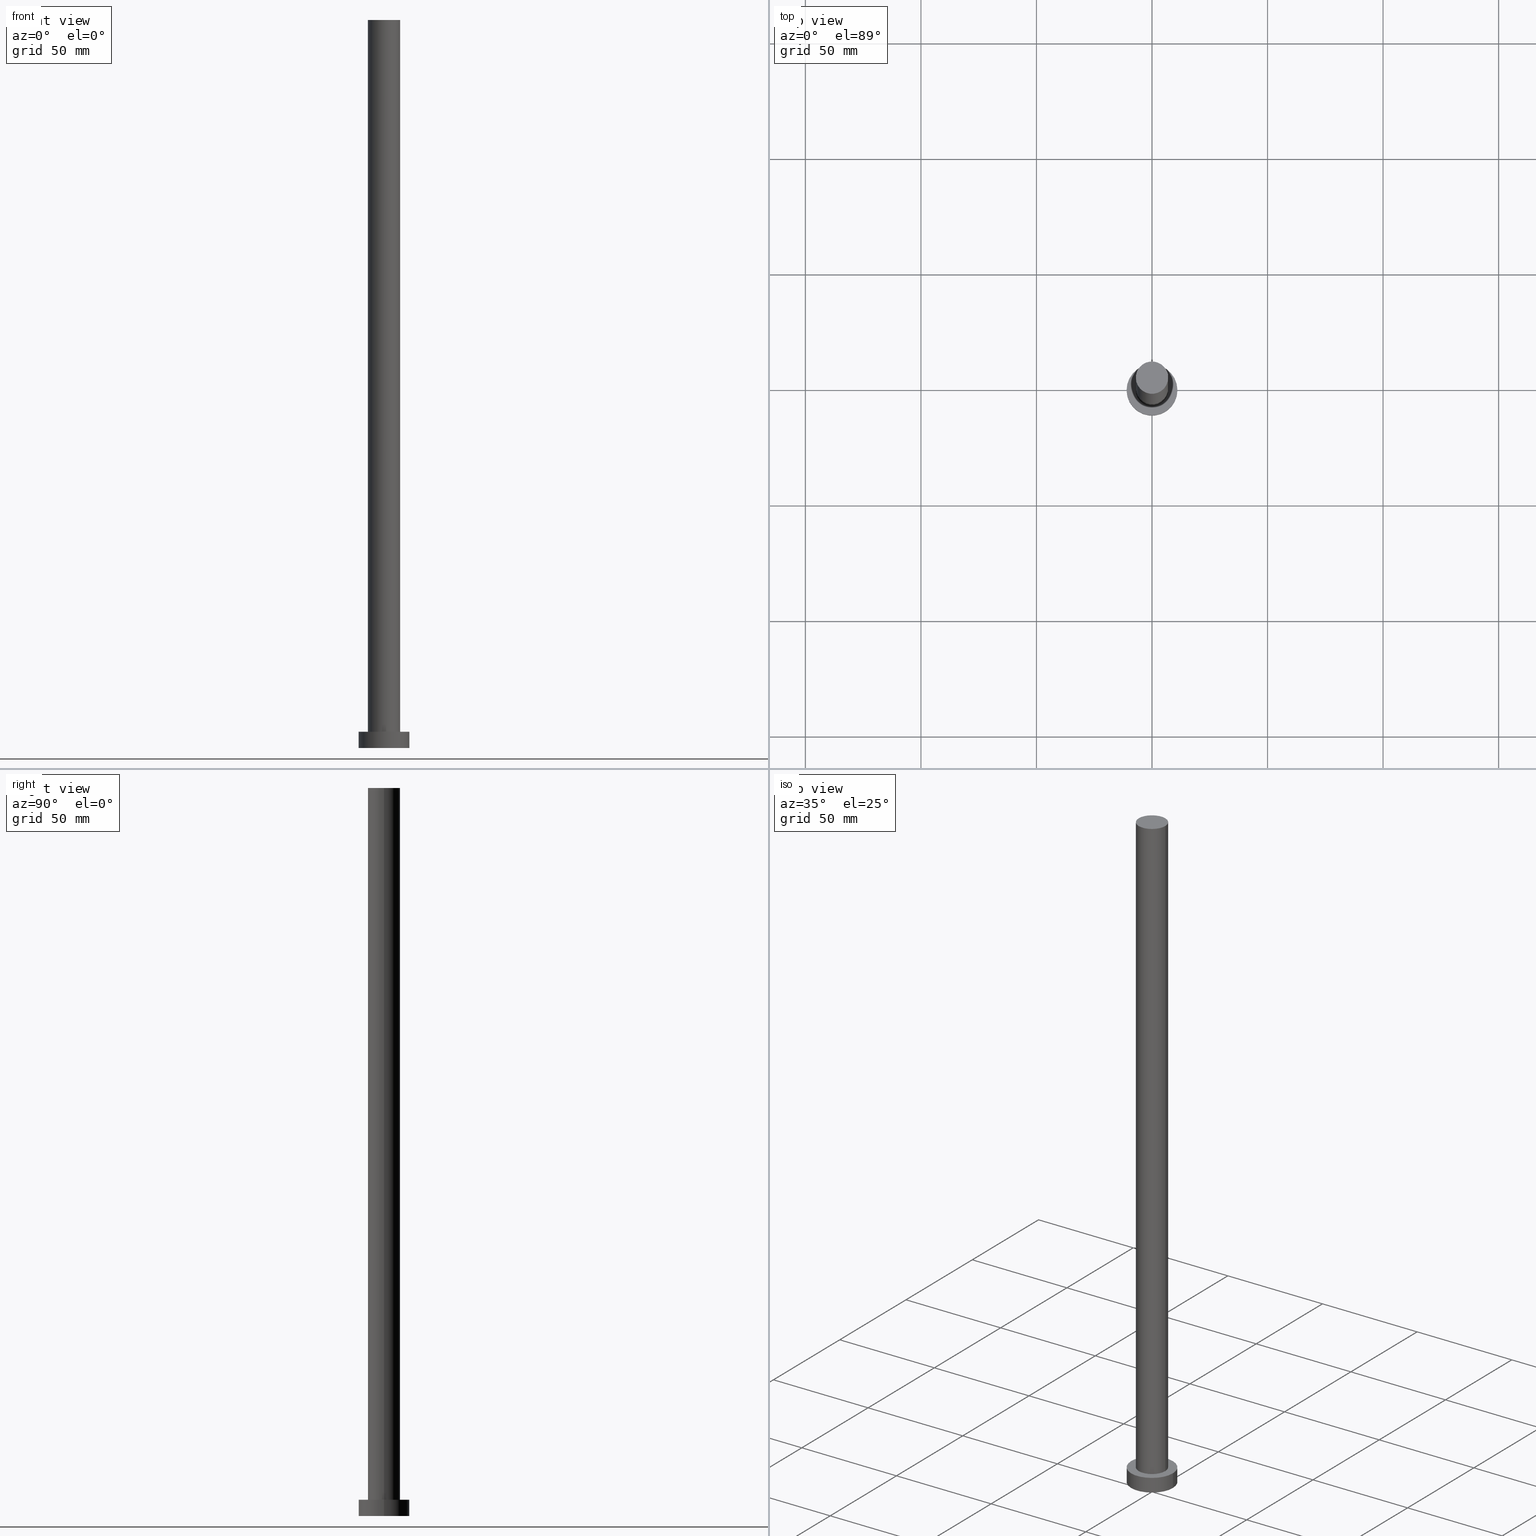
[diagram: canonical four-view strip — front | top / right | iso, engineering-drawing reading convention]
A machine part, canonical four-view strip (front | top / right | iso — engineering-drawing reading convention). The complete STEP part file that produces these views, byte-faithful:
ISO-10303-21;
HEADER;
FILE_DESCRIPTION (( 'STEP AP203' ),
    '1' );
FILE_NAME ('79ae.STEP',
    '2023-02-13T08:54:49',
    ( '' ),
    ( '' ),
    'SwSTEP 2.0',
    'SolidWorks 2019',
    '' );
FILE_SCHEMA (( 'CONFIG_CONTROL_DESIGN' ));
ENDSEC;

DATA;
#1 = EDGE_CURVE ( 'NONE', #62, #191, #209, .T. ) ;
#2 = CARTESIAN_POINT ( 'NONE',  ( 0.000000000000000000, 0.000000000000000000, 0.000000000000000000 ) ) ;
#3 = CARTESIAN_POINT ( 'NONE',  ( 0.000000000000000000, 0.000000000000000000, 7.000000000000000000 ) ) ;
#4 = AXIS2_PLACEMENT_3D ( 'NONE', #174, #243, #244 ) ;
#5 = EDGE_CURVE ( 'NONE', #62, #231, #134, .T. ) ;
#6 = DIRECTION ( 'NONE',  ( -1.000000000000000000, 0.000000000000000000, 0.000000000000000000 ) ) ;
#7 = EDGE_CURVE ( 'NONE', #231, #76, #103, .T. ) ;
#8 = LOCAL_TIME ( 9, 54, 49.00000000000000000, #166 ) ;
#9 = DIRECTION ( 'NONE',  ( 1.000000000000000000, 0.000000000000000000, -0.000000000000000000 ) ) ;
#10 = DIRECTION ( 'NONE',  ( 0.000000000000000000, 0.000000000000000000, 1.000000000000000000 ) ) ;
#11 = DIRECTION ( 'NONE',  ( 0.000000000000000000, 0.000000000000000000, 1.000000000000000000 ) ) ;
#12 = DIRECTION ( 'NONE',  ( 1.000000000000000000, 0.000000000000000000, 0.000000000000000000 ) ) ;
#13 = DIRECTION ( 'NONE',  ( 1.000000000000000000, 0.000000000000000000, 0.000000000000000000 ) ) ;
#14 = ORIENTED_EDGE ( 'NONE', *, *, #1, .F. ) ;
#15 = APPROVAL_STATUS ( 'not_yet_approved' ) ;
#16 = CLOSED_SHELL ( 'NONE', ( #183, #164, #27, #120, #66, #58, #99 ) ) ;
#17 = EDGE_CURVE ( 'NONE', #107, #52, #115, .T. ) ;
#18 = VERTEX_POINT ( 'NONE', #22 ) ;
#19 = AXIS2_PLACEMENT_3D ( 'NONE', #196, #92, #39 ) ;
#20 = DIRECTION ( 'NONE',  ( 0.000000000000000000, 0.000000000000000000, 1.000000000000000000 ) ) ;
#21 = CIRCLE ( 'NONE', #204, 11.00000000000000000 ) ;
#22 = CARTESIAN_POINT ( 'NONE',  ( 11.00000000000000000, 1.347111479062088405E-15, 7.000000000000000000 ) ) ;
#23 = LOCAL_TIME ( 9, 54, 49.00000000000000000, #197 ) ;
#24 = DIRECTION ( 'NONE',  ( 0.000000000000000000, 0.000000000000000000, 1.000000000000000000 ) ) ;
#25 = DIRECTION ( 'NONE',  ( 1.000000000000000000, 0.000000000000000000, 0.000000000000000000 ) ) ;
#26 = EDGE_CURVE ( 'NONE', #45, #18, #21, .T. ) ;
#27 = ADVANCED_FACE ( 'NONE', ( #80 ), #140, .T. ) ;
#28 = CARTESIAN_POINT ( 'NONE',  ( 0.000000000000000000, 0.000000000000000000, 0.000000000000000000 ) ) ;
#29 =( LENGTH_UNIT ( ) NAMED_UNIT ( * ) SI_UNIT ( .MILLI., .METRE. ) );
#30 = CARTESIAN_POINT ( 'NONE',  ( 11.00000000000000000, 1.347111479062088405E-15, 0.000000000000000000 ) ) ;
#31 = EDGE_LOOP ( 'NONE', ( #251, #137, #143, #91 ) ) ;
#32 = FACE_OUTER_BOUND ( 'NONE', #158, .T. ) ;
#33 = EDGE_LOOP ( 'NONE', ( #44, #229 ) ) ;
#34 = DATE_AND_TIME ( #214, #8 ) ;
#35 = EDGE_LOOP ( 'NONE', ( #57, #157, #161, #113 ) ) ;
#36 = ORIENTED_EDGE ( 'NONE', *, *, #216, .F. ) ;
#37 = DATE_TIME_ROLE ( 'classification_date' ) ;
#38 = PERSON_AND_ORGANIZATION_ROLE ( 'creator' ) ;
#39 = DIRECTION ( 'NONE',  ( -1.000000000000000000, 0.000000000000000000, 0.000000000000000000 ) ) ;
#40 = APPROVAL_ROLE ( '' ) ;
#41 = PRODUCT ( '79ae', '79ae', '', ( #77 ) ) ;
#42 = AXIS2_PLACEMENT_3D ( 'NONE', #131, #24, #109 ) ;
#43 = SHAPE_DEFINITION_REPRESENTATION ( #221, #163 ) ;
#44 = ORIENTED_EDGE ( 'NONE', *, *, #236, .F. ) ;
#45 = VERTEX_POINT ( 'NONE', #104 ) ;
#46 = DIRECTION ( 'NONE',  ( 1.000000000000000000, 0.000000000000000000, 0.000000000000000000 ) ) ;
#47 = VECTOR ( 'NONE', #207, 1000.000000000000000 ) ;
#48 = CIRCLE ( 'NONE', #162, 11.00000000000000000 ) ;
#49 = FACE_OUTER_BOUND ( 'NONE', #31, .T. ) ;
#50 = DIRECTION ( 'NONE',  ( 1.000000000000000000, 0.000000000000000000, 0.000000000000000000 ) ) ;
#51 = PERSON ( 'NEUR�EN�', 'NEUR�EN�', 'NEUR�EN�', ('NEUR�EN�'), ('NEUR�EN�'), ('NEUR�EN�') ) ;
#52 = VERTEX_POINT ( 'NONE', #155 ) ;
#53 = DIRECTION ( 'NONE',  ( -0.000000000000000000, -0.000000000000000000, -1.000000000000000000 ) ) ;
#54 = ORIENTED_EDGE ( 'NONE', *, *, #60, .T. ) ;
#55 = DIRECTION ( 'NONE',  ( -0.000000000000000000, -0.000000000000000000, -1.000000000000000000 ) ) ;
#56 = PERSON_AND_ORGANIZATION_ROLE ( 'design_supplier' ) ;
#57 = ORIENTED_EDGE ( 'NONE', *, *, #60, .F. ) ;
#58 = ADVANCED_FACE ( 'NONE', ( #188 ), #203, .T. ) ;
#59 = AXIS2_PLACEMENT_3D ( 'NONE', #184, #75, #13 ) ;
#60 = EDGE_CURVE ( 'NONE', #191, #62, #238, .T. ) ;
#61 = CARTESIAN_POINT ( 'NONE',  ( 0.000000000000000000, 0.000000000000000000, 7.000000000000000000 ) ) ;
#62 = VERTEX_POINT ( 'NONE', #70 ) ;
#63 = APPROVAL_STATUS ( 'not_yet_approved' ) ;
#64 = COORDINATED_UNIVERSAL_TIME_OFFSET ( 1, 0, .AHEAD. ) ;
#65 = ORGANIZATION ( 'NEUR�EN�', 'NEUR�EN�', '' ) ;
#66 = ADVANCED_FACE ( 'NONE', ( #154 ), #232, .F. ) ;
#67 = DIRECTION ( 'NONE',  ( 1.000000000000000000, 0.000000000000000000, -0.000000000000000000 ) ) ;
#68 = EDGE_CURVE ( 'NONE', #18, #107, #212, .T. ) ;
#69 = DESIGN_CONTEXT ( 'detailed design', #226, 'design' ) ;
#70 = CARTESIAN_POINT ( 'NONE',  ( -7.000000000000000888, 0.000000000000000000, 315.0000000000000000 ) ) ;
#71 = EDGE_LOOP ( 'NONE', ( #110, #14, #177, #150 ) ) ;
#72 = CARTESIAN_POINT ( 'NONE',  ( 0.000000000000000000, 0.000000000000000000, 0.000000000000000000 ) ) ;
#73 = DIRECTION ( 'NONE',  ( -0.000000000000000000, -0.000000000000000000, -1.000000000000000000 ) ) ;
#74 = PRODUCT_DEFINITION_FORMATION_WITH_SPECIFIED_SOURCE ( 'LIBOVOLN�', '', #41, .NOT_KNOWN. ) ;
#75 = DIRECTION ( 'NONE',  ( 0.000000000000000000, 0.000000000000000000, 1.000000000000000000 ) ) ;
#76 = VERTEX_POINT ( 'NONE', #102 ) ;
#77 = MECHANICAL_CONTEXT ( 'NONE', #249, 'mechanical' ) ;
#78 = CC_DESIGN_PERSON_AND_ORGANIZATION_ASSIGNMENT ( #141, #220, ( #74 ) ) ;
#79 = APPROVAL ( #181, 'NEUR�EN�' ) ;
#80 = FACE_OUTER_BOUND ( 'NONE', #139, .T. ) ;
#81 = SECURITY_CLASSIFICATION ( '', '', #132 ) ;
#82 = APPLICATION_PROTOCOL_DEFINITION ( 'international standard', 'config_control_design', 1994, #226 ) ;
#83 = PERSON_AND_ORGANIZATION ( #51, #65 ) ;
#84 = CARTESIAN_POINT ( 'NONE',  ( 0.000000000000000000, 0.000000000000000000, 7.000000000000000000 ) ) ;
#85 = CIRCLE ( 'NONE', #111, 11.00000000000000000 ) ;
#86 = DIRECTION ( 'NONE',  ( -0.000000000000000000, -0.000000000000000000, -1.000000000000000000 ) ) ;
#87 = LINE ( 'NONE', #130, #193 ) ;
#88 =( NAMED_UNIT ( * ) SI_UNIT ( $, .STERADIAN. ) SOLID_ANGLE_UNIT ( ) );
#89 = DIRECTION ( 'NONE',  ( -1.000000000000000000, 0.000000000000000000, 0.000000000000000000 ) ) ;
#90 = DIRECTION ( 'NONE',  ( 1.000000000000000000, 0.000000000000000000, 0.000000000000000000 ) ) ;
#91 = ORIENTED_EDGE ( 'NONE', *, *, #100, .F. ) ;
#92 = DIRECTION ( 'NONE',  ( -0.000000000000000000, -0.000000000000000000, -1.000000000000000000 ) ) ;
#93 = DIRECTION ( 'NONE',  ( -0.000000000000000000, -0.000000000000000000, -1.000000000000000000 ) ) ;
#94 = CALENDAR_DATE ( 2023, 13, 2 ) ;
#95 = DATE_AND_TIME ( #239, #23 ) ;
#96 = APPROVAL_PERSON_ORGANIZATION ( #165, #189, #237 ) ;
#97 = COORDINATED_UNIVERSAL_TIME_OFFSET ( 1, 0, .AHEAD. ) ;
#98 = APPROVAL_PERSON_ORGANIZATION ( #240, #79, #255 ) ;
#99 = ADVANCED_FACE ( 'NONE', ( #206 ), #108, .T. ) ;
#100 = EDGE_CURVE ( 'NONE', #45, #52, #87, .T. ) ;
#101 = CYLINDRICAL_SURFACE ( 'NONE', #106, 7.000000000000000888 ) ;
#102 = CARTESIAN_POINT ( 'NONE',  ( 7.000000000000000888, 8.572527594031474176E-16, 7.000000000000000000 ) ) ;
#103 = CIRCLE ( 'NONE', #124, 7.000000000000000888 ) ;
#104 = CARTESIAN_POINT ( 'NONE',  ( -11.00000000000000000, 0.000000000000000000, 7.000000000000000000 ) ) ;
#105 =( NAMED_UNIT ( * ) PLANE_ANGLE_UNIT ( ) SI_UNIT ( $, .RADIAN. ) );
#106 = AXIS2_PLACEMENT_3D ( 'NONE', #146, #86, #129 ) ;
#107 = VERTEX_POINT ( 'NONE', #30 ) ;
#108 = PLANE ( 'NONE',  #253 ) ;
#109 = DIRECTION ( 'NONE',  ( 1.000000000000000000, 0.000000000000000000, -0.000000000000000000 ) ) ;
#110 = ORIENTED_EDGE ( 'NONE', *, *, #119, .F. ) ;
#111 = AXIS2_PLACEMENT_3D ( 'NONE', #28, #172, #171 ) ;
#112 = ORIENTED_EDGE ( 'NONE', *, *, #148, .T. ) ;
#113 = ORIENTED_EDGE ( 'NONE', *, *, #5, .F. ) ;
#114 = APPLICATION_PROTOCOL_DEFINITION ( 'international standard', 'config_control_design', 1994, #249 ) ;
#115 = CIRCLE ( 'NONE', #151, 11.00000000000000000 ) ;
#116 = CC_DESIGN_APPROVAL ( #189, ( #74 ) ) ;
#117 = CARTESIAN_POINT ( 'NONE',  ( 0.000000000000000000, 0.000000000000000000, 315.0000000000000000 ) ) ;
#118 = PERSON_AND_ORGANIZATION ( #51, #65 ) ;
#119 = EDGE_CURVE ( 'NONE', #191, #76, #227, .T. ) ;
#120 = ADVANCED_FACE ( 'NONE', ( #248, #32 ), #192, .T. ) ;
#121 = AXIS2_PLACEMENT_3D ( 'NONE', #250, #53, #89 ) ;
#122 = MANIFOLD_SOLID_BREP ( 'P�idat vysunut�m3', #16 ) ;
#123 = ORIENTED_EDGE ( 'NONE', *, *, #26, .F. ) ;
#124 = AXIS2_PLACEMENT_3D ( 'NONE', #84, #20, #46 ) ;
#125 = CC_DESIGN_SECURITY_CLASSIFICATION ( #81, ( #74 ) ) ;
#126 = DIRECTION ( 'NONE',  ( -0.000000000000000000, -0.000000000000000000, -1.000000000000000000 ) ) ;
#127 = CARTESIAN_POINT ( 'NONE',  ( -7.000000000000000888, 0.000000000000000000, 7.000000000000000000 ) ) ;
#128 = CC_DESIGN_DATE_AND_TIME_ASSIGNMENT ( #185, #37, ( #81 ) ) ;
#129 = DIRECTION ( 'NONE',  ( -1.000000000000000000, 0.000000000000000000, 0.000000000000000000 ) ) ;
#130 = CARTESIAN_POINT ( 'NONE',  ( -11.00000000000000000, 0.000000000000000000, 7.000000000000000000 ) ) ;
#131 = CARTESIAN_POINT ( 'NONE',  ( 0.000000000000000000, 0.000000000000000000, 7.000000000000000000 ) ) ;
#132 = SECURITY_CLASSIFICATION_LEVEL ( 'unclassified' ) ;
#133 = EDGE_LOOP ( 'NONE', ( #179, #54 ) ) ;
#134 = LINE ( 'NONE', #180, #215 ) ;
#135 = PERSON_AND_ORGANIZATION_ROLE ( 'classification_officer' ) ;
#136 = EDGE_LOOP ( 'NONE', ( #213, #36 ) ) ;
#137 = ORIENTED_EDGE ( 'NONE', *, *, #68, .T. ) ;
#138 = DIRECTION ( 'NONE',  ( 0.000000000000000000, 0.000000000000000000, 1.000000000000000000 ) ) ;
#139 = EDGE_LOOP ( 'NONE', ( #246, #123, #152, #187 ) ) ;
#140 = CYLINDRICAL_SURFACE ( 'NONE', #19, 11.00000000000000000 ) ;
#141 = PERSON_AND_ORGANIZATION ( #51, #65 ) ;
#142 = DATE_AND_TIME ( #176, #245 ) ;
#143 = ORIENTED_EDGE ( 'NONE', *, *, #17, .T. ) ;
#144 = LOCAL_TIME ( 9, 54, 49.00000000000000000, #97 ) ;
#145 = CARTESIAN_POINT ( 'NONE',  ( 0.000000000000000000, 0.000000000000000000, 315.0000000000000000 ) ) ;
#146 = CARTESIAN_POINT ( 'NONE',  ( 0.000000000000000000, 0.000000000000000000, 315.0000000000000000 ) ) ;
#147 = CC_DESIGN_PERSON_AND_ORGANIZATION_ASSIGNMENT ( #235, #56, ( #74 ) ) ;
#148 = EDGE_CURVE ( 'NONE', #18, #45, #48, .T. ) ;
#149 = CYLINDRICAL_SURFACE ( 'NONE', #233, 11.00000000000000000 ) ;
#150 = ORIENTED_EDGE ( 'NONE', *, *, #7, .T. ) ;
#151 = AXIS2_PLACEMENT_3D ( 'NONE', #2, #173, #25 ) ;
#152 = ORIENTED_EDGE ( 'NONE', *, *, #100, .T. ) ;
#153 = CC_DESIGN_APPROVAL ( #167, ( #81 ) ) ;
#154 = FACE_OUTER_BOUND ( 'NONE', #33, .T. ) ;
#155 = CARTESIAN_POINT ( 'NONE',  ( -11.00000000000000000, 0.000000000000000000, 0.000000000000000000 ) ) ;
#156 = COORDINATED_UNIVERSAL_TIME_OFFSET ( 1, 0, .AHEAD. ) ;
#157 = ORIENTED_EDGE ( 'NONE', *, *, #119, .T. ) ;
#158 = EDGE_LOOP ( 'NONE', ( #241, #112 ) ) ;
#159 = APPROVAL_DATE_TIME ( #95, #189 ) ;
#160 = AXIS2_PLACEMENT_3D ( 'NONE', #72, #211, #67 ) ;
#161 = ORIENTED_EDGE ( 'NONE', *, *, #216, .T. ) ;
#162 = AXIS2_PLACEMENT_3D ( 'NONE', #195, #11, #90 ) ;
#163 = ADVANCED_BREP_SHAPE_REPRESENTATION ( '79ae', ( #122, #59 ), #225 ) ;
#164 = ADVANCED_FACE ( 'NONE', ( #49 ), #149, .T. ) ;
#165 = PERSON_AND_ORGANIZATION ( #51, #65 ) ;
#166 = COORDINATED_UNIVERSAL_TIME_OFFSET ( 1, 0, .AHEAD. ) ;
#167 = APPROVAL ( #63, 'NEUR�EN�' ) ;
#168 = LOCAL_TIME ( 9, 54, 49.00000000000000000, #156 ) ;
#169 = CC_DESIGN_PERSON_AND_ORGANIZATION_ASSIGNMENT ( #219, #38, ( #223 ) ) ;
#170 = CARTESIAN_POINT ( 'NONE',  ( 0.000000000000000000, 0.000000000000000000, 7.000000000000000000 ) ) ;
#171 = DIRECTION ( 'NONE',  ( 1.000000000000000000, 0.000000000000000000, 0.000000000000000000 ) ) ;
#172 = DIRECTION ( 'NONE',  ( 0.000000000000000000, 0.000000000000000000, 1.000000000000000000 ) ) ;
#173 = DIRECTION ( 'NONE',  ( 0.000000000000000000, 0.000000000000000000, 1.000000000000000000 ) ) ;
#174 = CARTESIAN_POINT ( 'NONE',  ( 0.000000000000000000, 0.000000000000000000, 315.0000000000000000 ) ) ;
#175 = CIRCLE ( 'NONE', #254, 7.000000000000000888 ) ;
#176 = CALENDAR_DATE ( 2023, 13, 2 ) ;
#177 = ORIENTED_EDGE ( 'NONE', *, *, #5, .T. ) ;
#178 = APPROVAL_DATE_TIME ( #252, #79 ) ;
#179 = ORIENTED_EDGE ( 'NONE', *, *, #1, .T. ) ;
#180 = CARTESIAN_POINT ( 'NONE',  ( -7.000000000000000888, 0.000000000000000000, 315.0000000000000000 ) ) ;
#181 = APPROVAL_STATUS ( 'not_yet_approved' ) ;
#182 = CC_DESIGN_PERSON_AND_ORGANIZATION_ASSIGNMENT ( #118, #135, ( #81 ) ) ;
#183 = ADVANCED_FACE ( 'NONE', ( #208 ), #101, .T. ) ;
#184 = CARTESIAN_POINT ( 'NONE',  ( 0.000000000000000000, 0.000000000000000000, 0.000000000000000000 ) ) ;
#185 = DATE_AND_TIME ( #217, #144 ) ;
#186 = AXIS2_PLACEMENT_3D ( 'NONE', #117, #10, #12 ) ;
#187 = ORIENTED_EDGE ( 'NONE', *, *, #236, .T. ) ;
#188 = FACE_OUTER_BOUND ( 'NONE', #71, .T. ) ;
#189 = APPROVAL ( #15, 'NEUR�EN�' ) ;
#190 = DIRECTION ( 'NONE',  ( 0.000000000000000000, 0.000000000000000000, 1.000000000000000000 ) ) ;
#191 = VERTEX_POINT ( 'NONE', #247 ) ;
#192 = PLANE ( 'NONE',  #42 ) ;
#193 = VECTOR ( 'NONE', #55, 1000.000000000000000 ) ;
#194 = CARTESIAN_POINT ( 'NONE',  ( 7.000000000000000888, 8.572527594031474176E-16, 315.0000000000000000 ) ) ;
#195 = CARTESIAN_POINT ( 'NONE',  ( 0.000000000000000000, 0.000000000000000000, 7.000000000000000000 ) ) ;
#196 = CARTESIAN_POINT ( 'NONE',  ( 0.000000000000000000, 0.000000000000000000, 7.000000000000000000 ) ) ;
#197 = COORDINATED_UNIVERSAL_TIME_OFFSET ( 1, 0, .AHEAD. ) ;
#198 = PERSON_AND_ORGANIZATION ( #51, #65 ) ;
#199 = DATE_TIME_ROLE ( 'creation_date' ) ;
#200 = PERSON_AND_ORGANIZATION_ROLE ( 'design_owner' ) ;
#201 = VECTOR ( 'NONE', #73, 1000.000000000000000 ) ;
#202 = APPROVAL_PERSON_ORGANIZATION ( #83, #167, #40 ) ;
#203 = CYLINDRICAL_SURFACE ( 'NONE', #121, 7.000000000000000888 ) ;
#204 = AXIS2_PLACEMENT_3D ( 'NONE', #61, #138, #218 ) ;
#205 = CC_DESIGN_DATE_AND_TIME_ASSIGNMENT ( #142, #199, ( #223 ) ) ;
#206 = FACE_OUTER_BOUND ( 'NONE', #133, .T. ) ;
#207 = DIRECTION ( 'NONE',  ( -0.000000000000000000, -0.000000000000000000, -1.000000000000000000 ) ) ;
#208 = FACE_OUTER_BOUND ( 'NONE', #35, .T. ) ;
#209 = CIRCLE ( 'NONE', #186, 7.000000000000000888 ) ;
#210 = CC_DESIGN_APPROVAL ( #79, ( #223 ) ) ;
#211 = DIRECTION ( 'NONE',  ( 0.000000000000000000, 0.000000000000000000, 1.000000000000000000 ) ) ;
#212 = LINE ( 'NONE', #234, #47 ) ;
#213 = ORIENTED_EDGE ( 'NONE', *, *, #7, .F. ) ;
#214 = CALENDAR_DATE ( 2023, 13, 2 ) ;
#215 = VECTOR ( 'NONE', #93, 1000.000000000000000 ) ;
#216 = EDGE_CURVE ( 'NONE', #76, #231, #175, .T. ) ;
#217 = CALENDAR_DATE ( 2023, 13, 2 ) ;
#218 = DIRECTION ( 'NONE',  ( 1.000000000000000000, 0.000000000000000000, 0.000000000000000000 ) ) ;
#219 = PERSON_AND_ORGANIZATION ( #51, #65 ) ;
#220 = PERSON_AND_ORGANIZATION_ROLE ( 'creator' ) ;
#221 = PRODUCT_DEFINITION_SHAPE ( 'NONE', 'NONE',  #223 ) ;
#222 = APPROVAL_DATE_TIME ( #34, #167 ) ;
#223 = PRODUCT_DEFINITION ( 'NEZN�M�', '', #74, #69 ) ;
#224 = CC_DESIGN_PERSON_AND_ORGANIZATION_ASSIGNMENT ( #198, #200, ( #41 ) ) ;
#225 =( GEOMETRIC_REPRESENTATION_CONTEXT ( 3 ) GLOBAL_UNCERTAINTY_ASSIGNED_CONTEXT ( ( #228 ) ) GLOBAL_UNIT_ASSIGNED_CONTEXT ( ( #29, #105, #88 ) ) REPRESENTATION_CONTEXT ( 'NONE', 'WORKASPACE' ) );
#226 = APPLICATION_CONTEXT ( 'configuration controlled 3d designs of mechanical parts and assemblies' ) ;
#227 = LINE ( 'NONE', #194, #201 ) ;
#228 = UNCERTAINTY_MEASURE_WITH_UNIT (LENGTH_MEASURE( 1.000000000000000082E-05 ), #29, 'distance_accuracy_value', 'NONE');
#229 = ORIENTED_EDGE ( 'NONE', *, *, #17, .F. ) ;
#230 = DIRECTION ( 'NONE',  ( 0.000000000000000000, 0.000000000000000000, 1.000000000000000000 ) ) ;
#231 = VERTEX_POINT ( 'NONE', #127 ) ;
#232 = PLANE ( 'NONE',  #160 ) ;
#233 = AXIS2_PLACEMENT_3D ( 'NONE', #3, #126, #6 ) ;
#234 = CARTESIAN_POINT ( 'NONE',  ( 11.00000000000000000, 1.347111479062088405E-15, 7.000000000000000000 ) ) ;
#235 = PERSON_AND_ORGANIZATION ( #51, #65 ) ;
#236 = EDGE_CURVE ( 'NONE', #52, #107, #85, .T. ) ;
#237 = APPROVAL_ROLE ( '' ) ;
#238 = CIRCLE ( 'NONE', #4, 7.000000000000000888 ) ;
#239 = CALENDAR_DATE ( 2023, 13, 2 ) ;
#240 = PERSON_AND_ORGANIZATION ( #51, #65 ) ;
#241 = ORIENTED_EDGE ( 'NONE', *, *, #26, .T. ) ;
#242 = PRODUCT_RELATED_PRODUCT_CATEGORY ( 'detail', '', ( #41 ) ) ;
#243 = DIRECTION ( 'NONE',  ( 0.000000000000000000, 0.000000000000000000, 1.000000000000000000 ) ) ;
#244 = DIRECTION ( 'NONE',  ( 1.000000000000000000, 0.000000000000000000, 0.000000000000000000 ) ) ;
#245 = LOCAL_TIME ( 9, 54, 49.00000000000000000, #64 ) ;
#246 = ORIENTED_EDGE ( 'NONE', *, *, #68, .F. ) ;
#247 = CARTESIAN_POINT ( 'NONE',  ( 7.000000000000000888, 8.572527594031474176E-16, 315.0000000000000000 ) ) ;
#248 = FACE_BOUND ( 'NONE', #136, .T. ) ;
#249 = APPLICATION_CONTEXT ( 'configuration controlled 3d designs of mechanical parts and assemblies' ) ;
#250 = CARTESIAN_POINT ( 'NONE',  ( 0.000000000000000000, 0.000000000000000000, 315.0000000000000000 ) ) ;
#251 = ORIENTED_EDGE ( 'NONE', *, *, #148, .F. ) ;
#252 = DATE_AND_TIME ( #94, #168 ) ;
#253 = AXIS2_PLACEMENT_3D ( 'NONE', #145, #190, #9 ) ;
#254 = AXIS2_PLACEMENT_3D ( 'NONE', #170, #230, #50 ) ;
#255 = APPROVAL_ROLE ( '' ) ;
ENDSEC;
END-ISO-10303-21;
